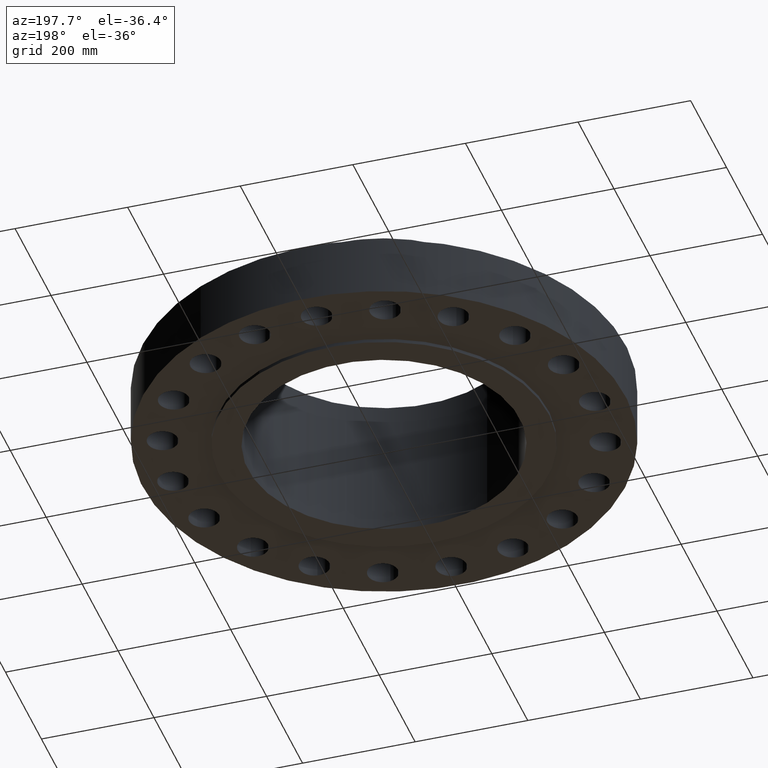
[diagram: clean part render]
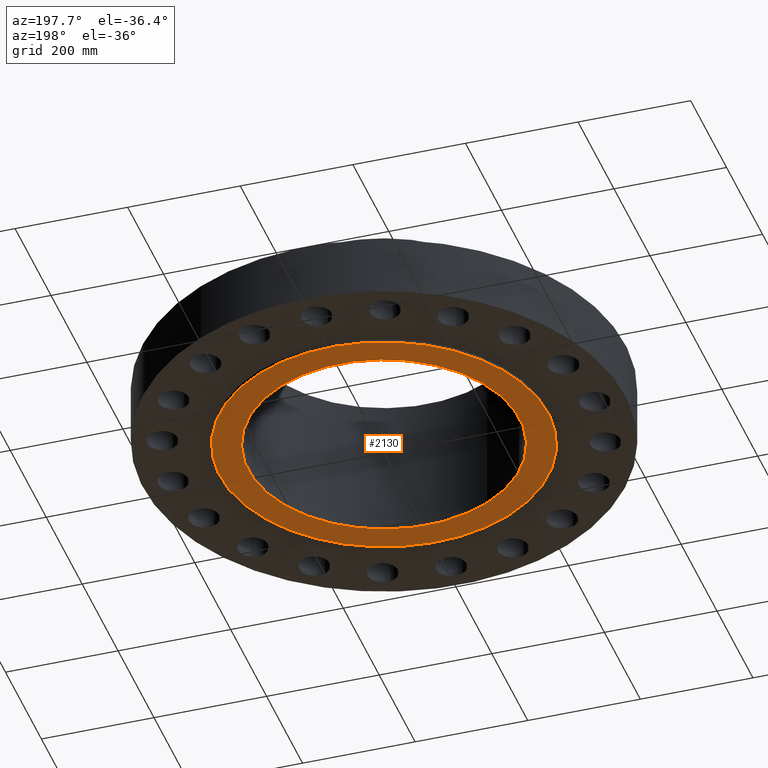
[diagram: same view with one face highlighted and labeled with its STEP entity id]
A machine part, auxiliary view. The second image highlights one B-rep face of the part: STEP entity #2130.
In plain terms, the highlighted planar face has unit normal (0, 0, -1).
Its self-contained STEP definition (entity closure, byte-faithful):
#999=AXIS2_PLACEMENT_3D('Circle Axis2P3D',#997,#998,$) ;
#1037=AXIS2_PLACEMENT_3D('Circle Axis2P3D',#1035,#1036,$) ;
#2106=AXIS2_PLACEMENT_3D('Plane Axis2P3D',#2103,#2104,#2105) ;
#2114=AXIS2_PLACEMENT_3D('Circle Axis2P3D',#2112,#2113,$) ;
#2123=AXIS2_PLACEMENT_3D('Circle Axis2P3D',#2121,#2122,$) ;
#997=CARTESIAN_POINT('Axis2P3D Location',(0.,0.,-0.24999999998)) ;
#1001=CARTESIAN_POINT('Vertex',(5.51339369392,10.0921994617,-0.250000000001)) ;
#1003=CARTESIAN_POINT('Vertex',(-5.51339369392,-10.0921994618,-0.250000000001)) ;
#1035=CARTESIAN_POINT('Axis2P3D Location',(0.,0.,-0.250000000001)) ;
#2103=CARTESIAN_POINT('Axis2P3D Location',(0.,9.50000000004,-0.250000000001)) ;
#2112=CARTESIAN_POINT('Axis2P3D Location',(3.08509823112E-011,-6.18899507321E-012,-0.250000000001)) ;
#2116=CARTESIAN_POINT('Vertex',(4.55454261676,8.33703433799,-0.250000000001)) ;
#2118=CARTESIAN_POINT('Vertex',(-4.55454261676,-8.33703433799,-0.24999999998)) ;
#2121=CARTESIAN_POINT('Axis2P3D Location',(-3.35689481461E-015,1.0665973791E-011,-0.250000000001)) ;
#998=DIRECTION('Axis2P3D Direction',(0.,0.,-0.0393700787402)) ;
#1036=DIRECTION('Axis2P3D Direction',(0.,0.,-0.0393700787402)) ;
#2104=DIRECTION('Axis2P3D Direction',(0.,0.,-0.0393700787402)) ;
#2105=DIRECTION('Axis2P3D XDirection',(0.0393700787402,0.,0.)) ;
#2113=DIRECTION('Axis2P3D Direction',(0.,0.,-0.0393700787402)) ;
#2122=DIRECTION('Axis2P3D Direction',(0.,0.,-0.0393700787402)) ;
#2109=ORIENTED_EDGE('',*,*,#1039,.T.) ;
#2110=ORIENTED_EDGE('',*,*,#1005,.T.) ;
#2127=ORIENTED_EDGE('',*,*,#2120,.F.) ;
#2128=ORIENTED_EDGE('',*,*,#2125,.F.) ;
#2129=FACE_BOUND('',#2126,.T.) ;
#2130=ADVANCED_FACE('PartBody',(#2111,#2129),#2107,.T.) ;
#1000=CIRCLE('generated circle',#999,11.5) ;
#1038=CIRCLE('generated circle',#1037,11.5) ;
#2115=CIRCLE('generated circle',#2114,9.50000000004) ;
#2124=CIRCLE('generated circle',#2123,9.50000000004) ;
#1005=EDGE_CURVE('',#1002,#1004,#1000,.T.) ;
#1039=EDGE_CURVE('',#1004,#1002,#1038,.T.) ;
#2120=EDGE_CURVE('',#2117,#2119,#2115,.T.) ;
#2125=EDGE_CURVE('',#2119,#2117,#2124,.T.) ;
#2108=EDGE_LOOP('',(#2109,#2110)) ;
#2126=EDGE_LOOP('',(#2127,#2128)) ;
#2111=FACE_OUTER_BOUND('',#2108,.T.) ;
#2107=PLANE('',#2106) ;
#1002=VERTEX_POINT('',#1001) ;
#1004=VERTEX_POINT('',#1003) ;
#2117=VERTEX_POINT('',#2116) ;
#2119=VERTEX_POINT('',#2118) ;